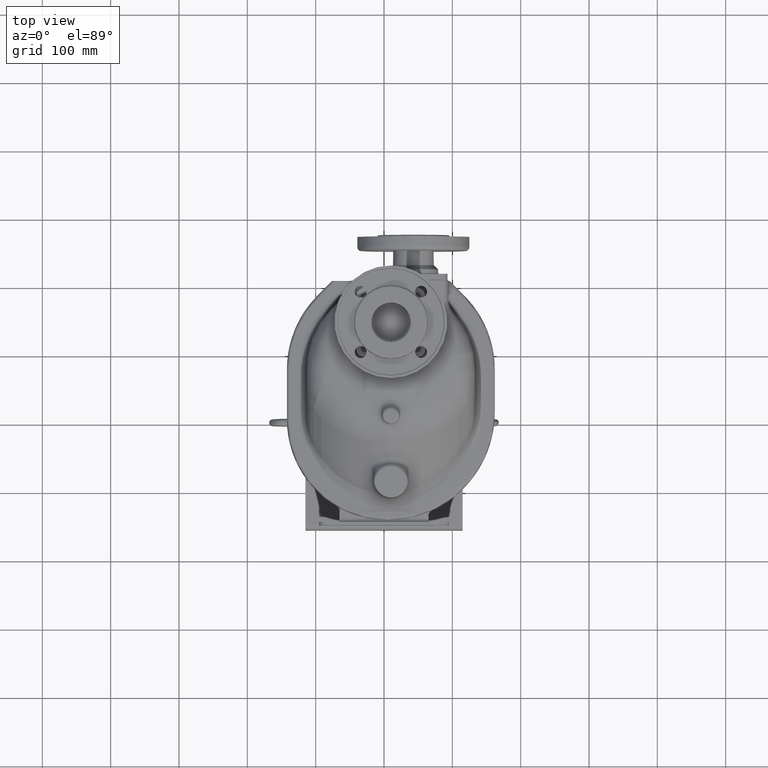
[diagram: clean part render]
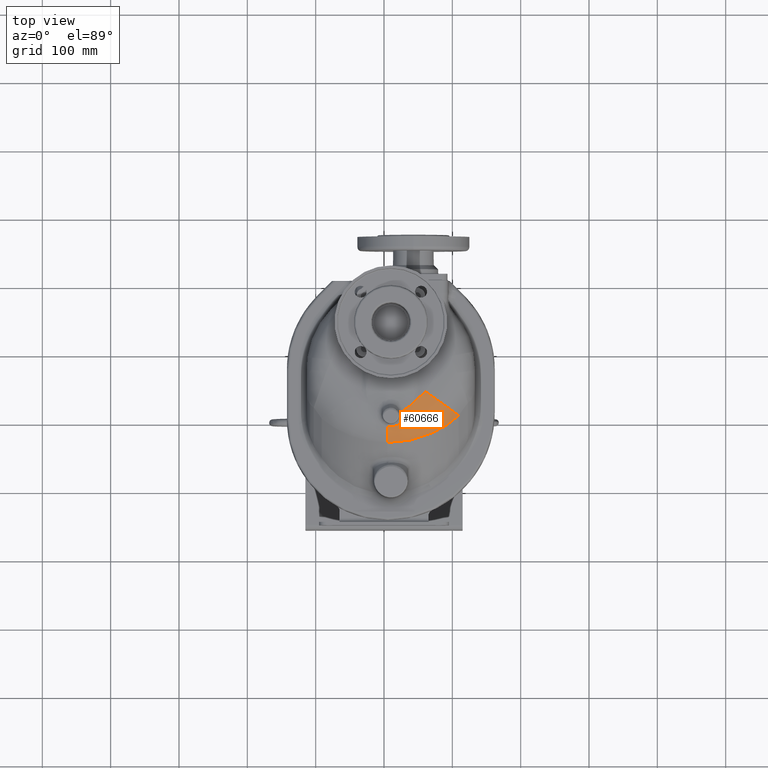
[diagram: same view with one face highlighted and labeled with its STEP entity id]
A machine part, top view. The second image highlights one B-rep face of the part: STEP entity #60666.
In plain terms, the highlighted face is a freeform B-spline surface patch.
Its self-contained STEP definition (entity closure, byte-faithful):
#60=CARTESIAN_POINT('',(4.676081768650E1,2.222382711685E1,1.075E2));
#61=CARTESIAN_POINT('',(4.718872160353E1,2.251621480639E1,1.075E2));
#62=CARTESIAN_POINT('',(4.803051749132E1,2.310669344208E1,1.075E2));
#63=CARTESIAN_POINT('',(4.925350891889E1,2.401009807787E1,1.075E2));
#64=CARTESIAN_POINT('',(5.043188078383E1,2.492640877660E1,1.075E2));
#65=CARTESIAN_POINT('',(5.156137392831E1,2.585055068629E1,1.075E2));
#66=CARTESIAN_POINT('',(5.264702762473E1,2.678476813309E1,1.075E2));
#67=CARTESIAN_POINT('',(5.369760888815E1,2.773632695411E1,1.075E2));
#68=CARTESIAN_POINT('',(5.467695873003E1,2.867043454930E1,1.075E2));
#69=CARTESIAN_POINT('',(5.555601826424E1,2.955165517195E1,1.075E2));
#70=CARTESIAN_POINT('',(5.632116061988E1,3.035550874673E1,1.075E2));
#71=CARTESIAN_POINT('',(5.695939720542E1,3.105468536549E1,1.075E2));
#72=CARTESIAN_POINT('',(5.751539208760E1,3.168676412912E1,1.075E2));
#73=CARTESIAN_POINT('',(5.802767805102E1,3.228991594073E1,1.075E2));
#74=CARTESIAN_POINT('',(5.853750452684E1,3.291208041050E1,1.075E2));
#75=CARTESIAN_POINT('',(5.904616747054E1,3.355768672353E1,1.075E2));
#76=CARTESIAN_POINT('',(5.954307181586E1,3.421522084737E1,1.075E2));
#77=CARTESIAN_POINT('',(5.985923496879E1,3.465224788360E1,1.075E2));
#78=CARTESIAN_POINT('',(6.001408767569E1,3.487124348237E1,1.075E2));
#196=CARTESIAN_POINT('',(4.999999999127E0,-1.684008274446E1,1.022461326631E2));
#197=CARTESIAN_POINT('',(5.217806133387E0,-1.689064275731E1,1.022253573372E2));
#198=CARTESIAN_POINT('',(5.654623842226E0,-1.698466114887E1,1.021860229331E2));
#199=CARTESIAN_POINT('',(6.313142589266E0,-1.710465046673E1,1.021337004123E2));
#200=CARTESIAN_POINT('',(6.974324806092E0,-1.720368405394E1,1.020881141124E2));
#201=CARTESIAN_POINT('',(7.637667776721E0,-1.728181620109E1,1.020493303386E2));
#202=CARTESIAN_POINT('',(8.302668124163E0,-1.733902793422E1,1.020174312734E2));
#203=CARTESIAN_POINT('',(8.968844703202E0,-1.737523240034E1,1.019925164186E2));
#204=CARTESIAN_POINT('',(9.635718559695E0,-1.739028916810E1,1.019746957770E2));
#205=CARTESIAN_POINT('',(1.030269158425E1,-1.738434455537E1,1.019639485423E2));
#206=CARTESIAN_POINT('',(1.096917403252E1,-1.735748659128E1,1.019602670085E2));
#207=CARTESIAN_POINT('',(1.163457545950E1,-1.730976495340E1,1.019636485826E2));
#208=CARTESIAN_POINT('',(1.229826446594E1,-1.724119028971E1,1.019740973545E2));
#209=CARTESIAN_POINT('',(1.295960510091E1,-1.715173981800E1,1.019916210371E2));
#210=CARTESIAN_POINT('',(1.361795089933E1,-1.704134233863E1,1.020162378829E2));
#211=CARTESIAN_POINT('',(1.427279028095E1,-1.691016695069E1,1.020478493332E2));
#212=CARTESIAN_POINT('',(1.492360189021E1,-1.675834584027E1,1.020863613862E2));
#213=CARTESIAN_POINT('',(1.556984091920E1,-1.658596250384E1,1.021316897998E2));
#214=CARTESIAN_POINT('',(1.621060892900E1,-1.639316142368E1,1.021837296930E2));
#215=CARTESIAN_POINT('',(1.684500400432E1,-1.618009577852E1,1.022423657698E2));
#216=CARTESIAN_POINT('',(1.747210524370E1,-1.594688406048E1,1.023074908581E2));
#217=CARTESIAN_POINT('',(1.809159367313E1,-1.569367308104E1,1.023789481964E2));
#218=CARTESIAN_POINT('',(1.870312795310E1,-1.542059069187E1,1.024565772644E2));
#219=CARTESIAN_POINT('',(1.930632611547E1,-1.512770797952E1,1.025402293552E2));
#220=CARTESIAN_POINT('',(1.990015449437E1,-1.481538844006E1,1.026296661898E2));
#221=CARTESIAN_POINT('',(2.048359315487E1,-1.448403828569E1,1.027246299287E2));
#222=CARTESIAN_POINT('',(2.105561525292E1,-1.413407177188E1,1.028248582502E2));
#223=CARTESIAN_POINT('',(2.161570317209E1,-1.376579202147E1,1.029300974953E2));
#224=CARTESIAN_POINT('',(2.216334063172E1,-1.337951780075E1,1.030400809329E2));
#225=CARTESIAN_POINT('',(2.269798678434E1,-1.297555565417E1,1.031545410493E2));
#226=CARTESIAN_POINT('',(2.321872628232E1,-1.255450840234E1,1.032731221285E2));
#227=CARTESIAN_POINT('',(2.372467666536E1,-1.211701890492E1,1.033954552111E2));
#228=CARTESIAN_POINT('',(2.421498015517E1,-1.166375942165E1,1.035211632959E2));
#229=CARTESIAN_POINT('',(2.468902119296E1,-1.119534037689E1,1.036498786779E2));
#230=CARTESIAN_POINT('',(2.514620983695E1,-1.071239819543E1,1.037812261224E2));
#231=CARTESIAN_POINT('',(2.558597099480E1,-1.021558898327E1,1.039148266222E2));
#232=CARTESIAN_POINT('',(2.600767959326E1,-9.705681212245E0,1.040502734255E2));
#233=CARTESIAN_POINT('',(2.641074940011E1,-9.183457884883E0,1.041871610579E2));
#234=CARTESIAN_POINT('',(2.679464369505E1,-8.649736034743E0,1.043250792222E2));
#235=CARTESIAN_POINT('',(2.715888610948E1,-8.105403563837E0,1.044636030378E2));
#236=CARTESIAN_POINT('',(2.750303910835E1,-7.551358340249E0,1.046023153409E2));
#237=CARTESIAN_POINT('',(2.782671564949E1,-6.988510096108E0,1.047408062747E2));
#238=CARTESIAN_POINT('',(2.812959521210E1,-6.417741709951E0,1.048786838520E2));
#239=CARTESIAN_POINT('',(2.841139266875E1,-5.839934589647E0,1.050155688553E2));
#240=CARTESIAN_POINT('',(2.867188568181E1,-5.255993820066E0,1.051510868259E2));
#241=CARTESIAN_POINT('',(2.891088031032E1,-4.666953738464E0,1.052848461012E2));
#242=CARTESIAN_POINT('',(2.912822442297E1,-4.073840384236E0,1.054164759599E2));
#243=CARTESIAN_POINT('',(2.932383903230E1,-3.477650827967E0,1.055456303694E2));
#244=CARTESIAN_POINT('',(2.949779105542E1,-2.879029057274E0,1.056720555091E2));
#245=CARTESIAN_POINT('',(2.965014478835E1,-2.278611403715E0,1.057955102769E2));
#246=CARTESIAN_POINT('',(2.978097821243E1,-1.677011485221E0,1.059157686604E2));
#247=CARTESIAN_POINT('',(2.989044599842E1,-1.075097755017E0,1.060325606832E2));
#248=CARTESIAN_POINT('',(2.997870719964E1,-4.736960577983E-1,1.061456455789E2));
#249=CARTESIAN_POINT('',(3.004592771281E1,1.263655307565E-1,1.062548018711E2));
#250=CARTESIAN_POINT('',(3.009228476474E1,7.243743118786E-1,1.063598475924E2));
#251=CARTESIAN_POINT('',(3.010939367472E1,1.120984515938E0,1.064269912204E2));
#252=CARTESIAN_POINT('',(3.011453762967E1,1.318819141625E0,1.064598456783E2));
#254=CARTESIAN_POINT('',(3.011453762967E1,1.318819141625E0,1.064598456783E2));
#255=CARTESIAN_POINT('',(3.012165330295E1,1.593182485528E0,1.065054093245E2));
#256=CARTESIAN_POINT('',(3.013604605897E1,2.143061624647E0,1.065936175389E2));
#257=CARTESIAN_POINT('',(3.015813000069E1,2.971154936074E0,1.067171081647E2));
#258=CARTESIAN_POINT('',(3.017319476238E1,3.525446374863E0,1.067935369279E2));
#259=CARTESIAN_POINT('',(3.018081460489E1,3.803118173751E0,1.068302662761E2));
#261=CARTESIAN_POINT('',(3.018081460489E1,3.803118173751E0,1.068302662761E2));
#262=CARTESIAN_POINT('',(3.018661026272E1,4.014230551518E0,1.068581911758E2));
#263=CARTESIAN_POINT('',(3.019112139797E1,4.438186648313E0,1.069127647394E2));
#264=CARTESIAN_POINT('',(3.017646333894E1,5.079563553070E0,1.069905764041E2));
#265=CARTESIAN_POINT('',(3.014015119045E1,5.725524722602E0,1.070639856982E2));
#266=CARTESIAN_POINT('',(3.008196565190E1,6.375546763283E0,1.071326907443E2));
#267=CARTESIAN_POINT('',(3.000171621095E1,7.029032268216E0,1.071963909949E2));
#268=CARTESIAN_POINT('',(2.989927629363E1,7.685454197039E0,1.072547912854E2));
#269=CARTESIAN_POINT('',(2.981598155898E1,8.124391552737E0,1.072900059958E2));
#270=CARTESIAN_POINT('',(2.977060783238E1,8.344239126032E0,1.073066405604E2));
#272=CARTESIAN_POINT('',(2.977060783238E1,8.344239126032E0,1.073066405604E2));
#273=CARTESIAN_POINT('',(3.013504897951E1,8.516758845817E0,1.073107493449E2));
#274=CARTESIAN_POINT('',(3.086557434385E1,8.874048655826E0,1.073192257094E2));
#275=CARTESIAN_POINT('',(3.196392721398E1,9.447118736466E0,1.073326212908E2));
#276=CARTESIAN_POINT('',(3.306472303725E1,1.005828876446E1,1.073465585579E2));
#277=CARTESIAN_POINT('',(3.416745592478E1,1.070800143636E1,1.073608754376E2));
#278=CARTESIAN_POINT('',(3.527132087092E1,1.139719198739E1,1.073754323676E2));
#279=CARTESIAN_POINT('',(3.637697152947E1,1.212723106173E1,1.073900648466E2));
#280=CARTESIAN_POINT('',(3.748517634031E1,1.289991799728E1,1.074046077844E2));
#281=CARTESIAN_POINT('',(3.859625188702E1,1.371668562915E1,1.074188683083E2));
#282=CARTESIAN_POINT('',(3.971039542923E1,1.457951286270E1,1.074326630171E2));
#283=CARTESIAN_POINT('',(4.045477886764E1,1.518601695488E1,1.074413939667E2));
#284=CARTESIAN_POINT('',(4.082702514278E1,1.549679329104E1,1.074455962500E2));
#286=CARTESIAN_POINT('',(4.082702514278E1,1.549679329104E1,1.074455962500E2));
#287=CARTESIAN_POINT('',(4.100021008106E1,1.564145459838E1,1.074475592240E2));
#288=CARTESIAN_POINT('',(4.135293713051E1,1.594460081307E1,1.074516523496E2));
#289=CARTESIAN_POINT('',(4.189701139116E1,1.644144600259E1,1.074582645854E2));
#290=CARTESIAN_POINT('',(4.245758413469E1,1.698314950999E1,1.074651625557E2));
#291=CARTESIAN_POINT('',(4.303325346327E1,1.757160058423E1,1.074721666143E2));
#292=CARTESIAN_POINT('',(4.362288450438E1,1.820850980122E1,1.074790406008E2));
#293=CARTESIAN_POINT('',(4.422509441506E1,1.889593769389E1,1.074855179097E2));
#294=CARTESIAN_POINT('',(4.484032301775E1,1.963677081406E1,1.074912795292E2));
#295=CARTESIAN_POINT('',(4.546810447540E1,2.043455358866E1,1.074959711637E2));
#296=CARTESIAN_POINT('',(4.610790684925E1,2.129197800033E1,1.074991722117E2));
#297=CARTESIAN_POINT('',(4.654241958610E1,2.190641876092E1,1.075000005020E2));
#298=CARTESIAN_POINT('',(4.676081768650E1,2.222382711685E1,1.075E2));
#300=CARTESIAN_POINT('',(4.999999999859E0,9.767027304759E0,3.75E1));
#301=DIRECTION('',(1.E0,-1.796109996835E-12,0.E0));
#302=DIRECTION('',(-6.827046864341E-13,-3.801015721341E-1,9.249447523291E-1));
#303=AXIS2_PLACEMENT_3D('',#300,#301,#302);
#411=CARTESIAN_POINT('',(4.999999999127E0,-1.684008274446E1,1.022461326631E2));
#3468=CARTESIAN_POINT('',(5.E0,-3.973044737830E1,8.699747468306E1));
#3469=CARTESIAN_POINT('',(6.034536997938E0,-3.973044697408E1,8.699747469583E1));
#3470=CARTESIAN_POINT('',(8.104642207348E0,-3.971020905824E1,8.699262854527E1));
#3471=CARTESIAN_POINT('',(1.121122971413E1,-3.961899000533E1,8.697075087034E1));
#3472=CARTESIAN_POINT('',(1.431690827398E1,-3.946686811769E1,8.693417030181E1));
#3473=CARTESIAN_POINT('',(1.741953993564E1,-3.925388291458E1,8.688278832285E1));
#3474=CARTESIAN_POINT('',(2.051707996895E1,-3.898016201200E1,8.681647800851E1));
#3475=CARTESIAN_POINT('',(2.360749325080E1,-3.864594801399E1,8.673506029614E1));
#3476=CARTESIAN_POINT('',(2.668873802066E1,-3.825155192240E1,8.663835029919E1));
#3477=CARTESIAN_POINT('',(2.975866897294E1,-3.779741843352E1,8.652611822071E1));
#3478=CARTESIAN_POINT('',(3.281576466400E1,-3.728396363557E1,8.639810146397E1));
#3479=CARTESIAN_POINT('',(3.585869311218E1,-3.671161974538E1,8.625398395780E1));
#3480=CARTESIAN_POINT('',(3.888619113303E1,-3.608085930181E1,8.609338008173E1));
#3481=CARTESIAN_POINT('',(4.189648301819E1,-3.539227911530E1,8.591591515637E1));
#3482=CARTESIAN_POINT('',(4.488745218995E1,-3.464667889660E1,8.572116520836E1));
#3483=CARTESIAN_POINT('',(4.785707835807E1,-3.384490022087E1,8.550870674300E1));
#3484=CARTESIAN_POINT('',(5.080331856760E1,-3.298792763258E1,8.527804727938E1));
#3485=CARTESIAN_POINT('',(5.372413694279E1,-3.207681660695E1,8.502869333773E1));
#3486=CARTESIAN_POINT('',(5.661751473908E1,-3.111274677118E1,8.476008875699E1));
#3487=CARTESIAN_POINT('',(5.948100341886E1,-3.009714096368E1,8.447171160382E1));
#3488=CARTESIAN_POINT('',(6.231228534014E1,-2.903153489224E1,8.416299183671E1));
#3489=CARTESIAN_POINT('',(6.510875905877E1,-2.791770935325E1,8.383338433823E1));
#3490=CARTESIAN_POINT('',(6.786785067322E1,-2.675760543909E1,8.348233255773E1));
#3491=CARTESIAN_POINT('',(7.058673112656E1,-2.555345113422E1,8.310931543531E1));
#3492=CARTESIAN_POINT('',(7.326253857441E1,-2.430768648614E1,8.271383898104E1));
#3493=CARTESIAN_POINT('',(7.589222447914E1,-2.302305300995E1,8.229547096438E1));
#3494=CARTESIAN_POINT('',(7.847275758879E1,-2.170251547091E1,8.185383044742E1));
#3495=CARTESIAN_POINT('',(8.100104618230E1,-2.034930795805E1,8.138861933260E1));
#3496=CARTESIAN_POINT('',(8.347404657274E1,-1.896688940009E1,8.089962322698E1));
#3497=CARTESIAN_POINT('',(8.588874384936E1,-1.755894913735E1,8.038674466963E1));
#3498=CARTESIAN_POINT('',(8.824222347652E1,-1.612937604311E1,7.985000305098E1));
#3499=CARTESIAN_POINT('',(9.053166131765E1,-1.468226763840E1,7.928955832984E1));
#3500=CARTESIAN_POINT('',(9.275463036059E1,-1.322169592493E1,7.870567951736E1));
#3501=CARTESIAN_POINT('',(9.490887530533E1,-1.175184467292E1,7.809879031884E1));
#3502=CARTESIAN_POINT('',(9.699244807655E1,-1.027695406452E1,7.746939042751E1));
#3503=CARTESIAN_POINT('',(9.900338254652E1,-8.801316502194E0,7.681840041034E1));
#3504=CARTESIAN_POINT('',(1.009407496669E2,-7.328805567493E0,7.614650618843E1));
#3505=CARTESIAN_POINT('',(1.028045519849E2,-5.862577646732E0,7.545434474524E1));
#3506=CARTESIAN_POINT('',(1.045947215127E2,-4.406037376131E0,7.474257990403E1));
#3507=CARTESIAN_POINT('',(1.063113094864E2,-2.962182554692E0,7.401237938289E1));
#3508=CARTESIAN_POINT('',(1.079543053936E2,-1.533705385553E0,7.326553613114E1));
#3509=CARTESIAN_POINT('',(1.090003938537E2,-5.946815742922E-1,
7.275697677224E1));
#3510=CARTESIAN_POINT('',(1.095115623588E2,-1.287565176259E-1,7.25E1));
#3681=CARTESIAN_POINT('',(6.001408767570E1,3.487124348238E1,3.75E1));
#3682=DIRECTION('',(5.773502691896E-1,8.164965809277E-1,0.E0));
#3683=DIRECTION('',(0.E0,0.E0,1.E0));
#3684=AXIS2_PLACEMENT_3D('',#3681,#3682,#3683);
#52140=CARTESIAN_POINT('',(1.095115623588E2,-1.287565176259E-1,7.25E1));
#52142=VERTEX_POINT('',#52140);
#52152=VERTEX_POINT('',#286);
#52153=VERTEX_POINT('',#298);
#52168=VERTEX_POINT('',#411);
#52170=VERTEX_POINT('',#252);
#52172=VERTEX_POINT('',#259);
#52174=VERTEX_POINT('',#270);
#52178=VERTEX_POINT('',#3468);
#52274=CARTESIAN_POINT('',(6.001408767570E1,3.487124348238E1,1.075E2));
#52275=VERTEX_POINT('',#52274);
#60547=CARTESIAN_POINT('',(4.999999999776E0,9.767027304759E0,1.075E2));
#60548=CARTESIAN_POINT('',(6.800874441365E0,9.767030136E0,1.075E2));
#60549=CARTESIAN_POINT('',(1.025467826161E1,9.885951896407E0,1.075E2));
#60550=CARTESIAN_POINT('',(1.521730598301E1,1.038644198193E1,1.075E2));
#60551=CARTESIAN_POINT('',(1.976567717915E1,1.112899524808E1,1.075E2));
#60552=CARTESIAN_POINT('',(2.393845745878E1,1.205909819184E1,1.075E2));
#60553=CARTESIAN_POINT('',(2.774892784218E1,1.312698052638E1,1.075E2));
#60554=CARTESIAN_POINT('',(3.120662522025E1,1.428753150063E1,1.075E2));
#60555=CARTESIAN_POINT('',(3.431264488592E1,1.549627717190E1,1.075E2));
#60556=CARTESIAN_POINT('',(3.706386000856E1,1.670814791753E1,1.075E2));
#60557=CARTESIAN_POINT('',(3.947244557727E1,1.788607929135E1,1.075E2));
#60558=CARTESIAN_POINT('',(4.158207544498E1,1.901401679737E1,1.075E2));
#60559=CARTESIAN_POINT('',(4.346474642146E1,2.010205524205E1,1.075E2));
#60560=CARTESIAN_POINT('',(4.520046157135E1,2.117858095010E1,1.075E2));
#60561=CARTESIAN_POINT('',(4.685108776080E1,2.227340938091E1,1.075E2));
#60562=CARTESIAN_POINT('',(4.844671058630E1,2.340402010771E1,1.075E2));
#60563=CARTESIAN_POINT('',(4.999049280648E1,2.457244279998E1,1.075E2));
#60564=CARTESIAN_POINT('',(5.147714108728E1,2.577435829502E1,1.075E2));
#60565=CARTESIAN_POINT('',(5.291470050915E1,2.701633822740E1,1.075E2));
#60566=CARTESIAN_POINT('',(5.433156094955E1,2.832685197998E1,1.075E2));
#60567=CARTESIAN_POINT('',(5.576105674925E1,2.974944839400E1,1.075E2));
#60568=CARTESIAN_POINT('',(5.721782372963E1,3.132330862489E1,1.075E2));
#60569=CARTESIAN_POINT('',(5.868527219064E1,3.306689480975E1,1.075E2));
#60570=CARTESIAN_POINT('',(5.958180969829E1,3.425990786939E1,1.075E2));
#60571=CARTESIAN_POINT('',(6.001408767570E1,3.487124348238E1,1.075E2));
#60572=CARTESIAN_POINT('',(4.999999999702E0,-1.585475096016E1,1.075E2));
#60573=CARTESIAN_POINT('',(7.388646728052E0,-1.585474844421E1,1.075E2));
#60574=CARTESIAN_POINT('',(1.196970755614E1,-1.569705596912E1,1.075E2));
#60575=CARTESIAN_POINT('',(1.855905610478E1,-1.503266940005E1,1.075E2));
#60576=CARTESIAN_POINT('',(2.461003063419E1,-1.404501988249E1,1.075E2));
#60577=CARTESIAN_POINT('',(3.017631708437E1,-1.280455560368E1,1.075E2));
#60578=CARTESIAN_POINT('',(3.527650937624E1,-1.137549499613E1,1.075E2));
#60579=CARTESIAN_POINT('',(3.992308729376E1,-9.816176773292E0,1.075E2));
#60580=CARTESIAN_POINT('',(4.411615063059E1,-8.184660077330E0,1.075E2));
#60581=CARTESIAN_POINT('',(4.784892885457E1,-6.540668387283E0,1.075E2));
#60582=CARTESIAN_POINT('',(5.113432658533E1,-4.934137925390E0,1.075E2));
#60583=CARTESIAN_POINT('',(5.402790336464E1,-3.387233223361E0,1.075E2));
#60584=CARTESIAN_POINT('',(5.662498058313E1,-1.886483098872E0,1.075E2));
#60585=CARTESIAN_POINT('',(5.903380957770E1,-3.926370441636E-1,1.075E2));
#60586=CARTESIAN_POINT('',(6.133968041765E1,1.136626948842E0,1.075E2));
#60587=CARTESIAN_POINT('',(6.358530333702E1,2.727601168271E0,1.075E2));
#60588=CARTESIAN_POINT('',(6.577644168615E1,4.385732903490E0,1.075E2));
#60589=CARTESIAN_POINT('',(6.790704482988E1,6.107974332075E0,1.075E2));
#60590=CARTESIAN_POINT('',(6.999042810076E1,7.907554402195E0,1.075E2));
#60591=CARTESIAN_POINT('',(7.207102276706E1,9.831502570692E0,1.075E2));
#60592=CARTESIAN_POINT('',(7.420468363012E1,1.195412227068E1,1.075E2));
#60593=CARTESIAN_POINT('',(7.642617768616E1,1.435288261700E1,1.075E2));
#60594=CARTESIAN_POINT('',(7.873153486137E1,1.708961182639E1,1.075E2));
#60595=CARTESIAN_POINT('',(8.020310565600E1,1.904460251704E1,1.075E2));
#60596=CARTESIAN_POINT('',(8.093418202629E1,2.007850290402E1,1.075E2));
#60597=CARTESIAN_POINT('',(4.999999999639E0,-3.804386182770E1,
9.468911086754E1));
#60598=CARTESIAN_POINT('',(7.897672459963E0,-3.804385958482E1,
9.468911086754E1));
#60599=CARTESIAN_POINT('',(1.345496649343E1,-3.785259068589E1,
9.468911086754E1));
#60600=CARTESIAN_POINT('',(2.145309660333E1,-3.704626559847E1,
9.468911086754E1));
#60601=CARTESIAN_POINT('',(2.880536379117E1,-3.584635650081E1,
9.468911086754E1));
#60602=CARTESIAN_POINT('',(3.557846198537E1,-3.433711142150E1,
9.468911086754E1));
#60603=CARTESIAN_POINT('',(4.179558621380E1,-3.259526125424E1,
9.468911086754E1));
#60604=CARTESIAN_POINT('',(4.747176488054E1,-3.069060046392E1,
9.468911086754E1));
#60605=CARTESIAN_POINT('',(5.260623565162E1,-2.869295332059E1,
9.468911086754E1));
#60606=CARTESIAN_POINT('',(5.718907245679E1,-2.667473391517E1,
9.468911086754E1));
#60607=CARTESIAN_POINT('',(6.123381179423E1,-2.469702575497E1,
9.468911086754E1));
#60608=CARTESIAN_POINT('',(6.480630651420E1,-2.278728481784E1,
9.468911086754E1));
#60609=CARTESIAN_POINT('',(6.802207768689E1,-2.092911589420E1,
9.468911086754E1));
#60610=CARTESIAN_POINT('',(7.101384037059E1,-1.907385981777E1,
9.468911086754E1));
#60611=CARTESIAN_POINT('',(7.388716972356E1,-1.716836359159E1,
9.468911086754E1));
#60612=CARTESIAN_POINT('',(7.669570923670E1,-1.517870289257E1,
9.468911086754E1));
#60613=CARTESIAN_POINT('',(7.944747443878E1,-1.309647068570E1,
9.468911086754E1));
#60614=CARTESIAN_POINT('',(8.213575885270E1,-1.092361378041E1,
9.468911086754E1));
#60615=CARTESIAN_POINT('',(8.477844198319E1,-8.641137825859E0,
9.468911086754E1));
#60616=CARTESIAN_POINT('',(8.743384735047E1,-6.185939869619E0,
9.468911086754E1));
#60617=CARTESIAN_POINT('',(9.017733304689E1,-3.457082220740E0,
9.468911086754E1));
#60618=CARTESIAN_POINT('',(9.306110017740E1,-3.439374188762E-1,
9.468911086754E1));
#60619=CARTESIAN_POINT('',(9.609210758516E1,3.252878879347E0,9.468911086754E1));
#60620=CARTESIAN_POINT('',(9.806167181433E1,5.867761555566E0,9.468911086754E1));
#60621=CARTESIAN_POINT('',(9.905151518347E1,7.267613771568E0,9.468911086754E1));
#60622=CARTESIAN_POINT('',(4.999999999602E0,-5.085475096016E1,
7.249999999999E1));
#60623=CARTESIAN_POINT('',(8.191558603307E0,-5.085474887492E1,
7.249999999999E1));
#60624=CARTESIAN_POINT('',(1.431248114069E1,-5.064409461865E1,
7.249999999999E1));
#60625=CARTESIAN_POINT('',(2.312397166421E1,-4.975582128945E1,
7.249999999999E1));
#60626=CARTESIAN_POINT('',(3.122754051869E1,-4.843336406610E1,
7.249999999999E1));
#60627=CARTESIAN_POINT('',(3.869739179817E1,-4.676893831926E1,
7.249999999999E1));
#60628=CARTESIAN_POINT('',(4.555937698083E1,-4.484649901549E1,
7.249999999999E1));
#60629=CARTESIAN_POINT('',(5.182999591730E1,-4.274245460087E1,
7.249999999999E1));
#60630=CARTESIAN_POINT('',(5.750798852396E1,-4.053342194520E1,
7.249999999999E1));
#60631=CARTESIAN_POINT('',(6.258160687979E1,-3.829914206757E1,
7.249999999999E1));
#60632=CARTESIAN_POINT('',(6.706475229826E1,-3.610713436334E1,
7.249999999999E1));
#60633=CARTESIAN_POINT('',(7.102922047403E1,-3.398790982820E1,
7.249999999999E1));
#60634=CARTESIAN_POINT('',(7.460219476773E1,-3.192338506466E1,
7.249999999999E1));
#60635=CARTESIAN_POINT('',(7.793051437377E1,-2.985946881490E1,
7.249999999999E1));
#60636=CARTESIAN_POINT('',(8.113146605197E1,-2.773675480762E1,
7.249999999999E1));
#60637=CARTESIAN_POINT('',(8.426500561206E1,-2.551691236229E1,
7.249999999999E1));
#60638=CARTESIAN_POINT('',(8.734044887861E1,-2.318982563394E1,
7.249999999999E1));
#60639=CARTESIAN_POINT('',(9.035071072399E1,-2.075680576188E1,
7.249999999999E1));
#60640=CARTESIAN_POINT('',(9.331630577900E1,-1.819552973846E1,
7.249999999999E1));
#60641=CARTESIAN_POINT('',(9.630357825922E1,-1.543361457426E1,
7.249999999999E1));
#60642=CARTESIAN_POINT('',(9.939914648732E1,-1.235474528240E1,
7.249999999999E1));
#60643=CARTESIAN_POINT('',(1.026652771557E2,-8.829150422819E0,
7.249999999999E1));
#60644=CARTESIAN_POINT('',(1.061152389205E2,-4.735762612331E0,
7.249999999999E1));
#60645=CARTESIAN_POINT('',(1.083723197932E2,-1.739891120609E0,
7.249999999999E1));
#60646=CARTESIAN_POINT('',(1.095115623588E2,-1.287565176103E-1,
7.249999999999E1));
#60647=(BOUNDED_SURFACE()B_SPLINE_SURFACE(3,3,((#60547,#60548,#60549,#60550,
#60551,#60552,#60553,#60554,#60555,#60556,#60557,#60558,#60559,#60560,#60561,
#60562,#60563,#60564,#60565,#60566,#60567,#60568,#60569,#60570,#60571),(#60572,
#60573,#60574,#60575,#60576,#60577,#60578,#60579,#60580,#60581,#60582,#60583,
#60584,#60585,#60586,#60587,#60588,#60589,#60590,#60591,#60592,#60593,#60594,
#60595,#60596),(#60597,#60598,#60599,#60600,#60601,#60602,#60603,#60604,#60605,
#60606,#60607,#60608,#60609,#60610,#60611,#60612,#60613,#60614,#60615,#60616,
#60617,#60618,#60619,#60620,#60621),(#60622,#60623,#60624,#60625,#60626,#60627,
#60628,#60629,#60630,#60631,#60632,#60633,#60634,#60635,#60636,#60637,#60638,
#60639,#60640,#60641,#60642,#60643,#60644,#60645,#60646)),.UNSPECIFIED.,.F.,.F.,
.F.)B_SPLINE_SURFACE_WITH_KNOTS((4,4),(4,1,1,1,1,1,1,1,1,1,1,1,1,1,1,1,1,1,1,1,
1,1,4),(0.E0,1.E0),(-3.316957339417E-12,7.983144692974E-2,1.530705600638E-1,
2.213446421108E-1,2.849708310089E-1,3.441829861766E-1,3.991896308095E-1,
4.499191127646E-1,4.960022846374E-1,5.372203022571E-1,5.740680306717E-1,
6.077478235866E-1,6.397194090333E-1,6.712716798523E-1,7.030066411463E-1,
7.348901824353E-1,7.667823602242E-1,7.987994494975E-1,8.318177511200E-1,
8.673797347194E-1,9.067446671056E-1,9.506896082764E-1,1.E0),.UNSPECIFIED.)GEOMETRIC_REPRESENTATION_ITEM()RATIONAL_B_SPLINE_SURFACE(((1.071796769725E0,
1.071796769725E0,1.071796769725E0,1.071796769725E0,1.071796769725E0,
1.071796769725E0,1.071796769725E0,1.071796769725E0,1.071796769725E0,
1.071796769725E0,1.071796769725E0,1.071796769725E0,1.071796769725E0,
1.071796769725E0,1.071796769725E0,1.071796769725E0,1.071796769725E0,
1.071796769725E0,1.071796769725E0,1.071796769725E0,1.071796769725E0,
1.071796769725E0,1.071796769725E0,1.071796769725E0,1.071796769725E0),(
9.760677434252E-1,9.760677434252E-1,9.760677434252E-1,9.760677434252E-1,
9.760677434252E-1,9.760677434252E-1,9.760677434252E-1,9.760677434252E-1,
9.760677434252E-1,9.760677434252E-1,9.760677434252E-1,9.760677434252E-1,
9.760677434252E-1,9.760677434252E-1,9.760677434252E-1,9.760677434252E-1,
9.760677434252E-1,9.760677434252E-1,9.760677434252E-1,9.760677434252E-1,
9.760677434252E-1,9.760677434252E-1,9.760677434252E-1,9.760677434252E-1,
9.760677434252E-1),(9.760677434252E-1,9.760677434252E-1,9.760677434252E-1,
9.760677434252E-1,9.760677434252E-1,9.760677434252E-1,9.760677434252E-1,
9.760677434252E-1,9.760677434252E-1,9.760677434252E-1,9.760677434252E-1,
9.760677434252E-1,9.760677434252E-1,9.760677434252E-1,9.760677434252E-1,
9.760677434252E-1,9.760677434252E-1,9.760677434252E-1,9.760677434252E-1,
9.760677434252E-1,9.760677434252E-1,9.760677434252E-1,9.760677434252E-1,
9.760677434252E-1,9.760677434252E-1),(1.071796769725E0,1.071796769725E0,
1.071796769725E0,1.071796769725E0,1.071796769725E0,1.071796769725E0,
1.071796769725E0,1.071796769725E0,1.071796769725E0,1.071796769725E0,
1.071796769725E0,1.071796769725E0,1.071796769725E0,1.071796769725E0,
1.071796769725E0,1.071796769725E0,1.071796769725E0,1.071796769725E0,
1.071796769725E0,1.071796769725E0,1.071796769725E0,1.071796769725E0,
1.071796769725E0,1.071796769725E0,1.071796769725E0)))REPRESENTATION_ITEM('')SURFACE());
#60649=ORIENTED_EDGE('',*,*,#60648,.T.);
#60651=ORIENTED_EDGE('',*,*,#60650,.T.);
#60653=ORIENTED_EDGE('',*,*,#60652,.T.);
#60655=ORIENTED_EDGE('',*,*,#60654,.T.);
#60656=ORIENTED_EDGE('',*,*,#60530,.T.);
#60657=ORIENTED_EDGE('',*,*,#60198,.T.);
#60659=ORIENTED_EDGE('',*,*,#60658,.T.);
#60661=ORIENTED_EDGE('',*,*,#60660,.F.);
#60663=ORIENTED_EDGE('',*,*,#60662,.F.);
#60664=EDGE_LOOP('',(#60649,#60651,#60653,#60655,#60656,#60657,#60659,#60661,
#60663));
#60665=FACE_OUTER_BOUND('',#60664,.F.);
#79=B_SPLINE_CURVE_WITH_KNOTS('',3,(#60,#61,#62,#63,#64,#65,#66,#67,#68,#69,#70,
#71,#72,#73,#74,#75,#76,#77,#78),.UNSPECIFIED.,.F.,.F.,(4,1,1,1,1,1,1,1,1,1,1,1,
1,1,1,1,4),(0.E0,6.25E-2,1.25E-1,1.875E-1,2.5E-1,3.125E-1,3.75E-1,4.375E-1,
5.E-1,5.625E-1,6.25E-1,6.875E-1,7.5E-1,8.125E-1,8.75E-1,9.375E-1,1.E0),
.UNSPECIFIED.);
#253=B_SPLINE_CURVE_WITH_KNOTS('',3,(#196,#197,#198,#199,#200,#201,#202,#203,
#204,#205,#206,#207,#208,#209,#210,#211,#212,#213,#214,#215,#216,#217,#218,#219,
#220,#221,#222,#223,#224,#225,#226,#227,#228,#229,#230,#231,#232,#233,#234,#235,
#236,#237,#238,#239,#240,#241,#242,#243,#244,#245,#246,#247,#248,#249,#250,#251,
#252),.UNSPECIFIED.,.F.,.F.,(4,1,1,1,1,1,1,1,1,1,1,1,1,1,1,1,1,1,1,1,1,1,1,1,1,
1,1,1,1,1,1,1,1,1,1,1,1,1,1,1,1,1,1,1,1,1,1,1,1,1,1,1,1,1,4),(0.E0,
1.851851851852E-2,3.703703703704E-2,5.555555555556E-2,7.407407407407E-2,
9.259259259259E-2,1.111111111111E-1,1.296296296296E-1,1.481481481481E-1,
1.666666666667E-1,1.851851851852E-1,2.037037037037E-1,2.222222222222E-1,
2.407407407407E-1,2.592592592593E-1,2.777777777778E-1,2.962962962963E-1,
3.148148148148E-1,3.333333333333E-1,3.518518518519E-1,3.703703703704E-1,
3.888888888889E-1,4.074074074074E-1,4.259259259259E-1,4.444444444444E-1,
4.629629629630E-1,4.814814814815E-1,5.E-1,5.185185185185E-1,5.370370370370E-1,
5.555555555556E-1,5.740740740741E-1,5.925925925926E-1,6.111111111111E-1,
6.296296296296E-1,6.481481481481E-1,6.666666666667E-1,6.851851851852E-1,
7.037037037037E-1,7.222222222222E-1,7.407407407407E-1,7.592592592593E-1,
7.777777777778E-1,7.962962962963E-1,8.148148148148E-1,8.333333333333E-1,
8.518518518519E-1,8.703703703704E-1,8.888888888889E-1,9.074074074074E-1,
9.259259259259E-1,9.444444444444E-1,9.629629629630E-1,9.814814814815E-1,1.E0),
.UNSPECIFIED.);
#260=B_SPLINE_CURVE_WITH_KNOTS('',3,(#254,#255,#256,#257,#258,#259),
.UNSPECIFIED.,.F.,.F.,(4,1,1,4),(0.E0,3.333333333333E-1,6.666666666667E-1,1.E0),
.UNSPECIFIED.);
#271=B_SPLINE_CURVE_WITH_KNOTS('',3,(#261,#262,#263,#264,#265,#266,#267,#268,
#269,#270),.UNSPECIFIED.,.F.,.F.,(4,1,1,1,1,1,1,4),(0.E0,1.428571428571E-1,
2.857142857143E-1,4.285714285714E-1,5.714285714286E-1,7.142857142857E-1,
8.571428571429E-1,1.E0),.UNSPECIFIED.);
#285=B_SPLINE_CURVE_WITH_KNOTS('',3,(#272,#273,#274,#275,#276,#277,#278,#279,
#280,#281,#282,#283,#284),.UNSPECIFIED.,.F.,.F.,(4,1,1,1,1,1,1,1,1,1,4),(0.E0,
1.E-1,2.E-1,3.E-1,4.E-1,5.E-1,6.E-1,7.E-1,8.E-1,9.E-1,1.E0),.UNSPECIFIED.);
#299=B_SPLINE_CURVE_WITH_KNOTS('',3,(#286,#287,#288,#289,#290,#291,#292,#293,
#294,#295,#296,#297,#298),.UNSPECIFIED.,.F.,.F.,(4,1,1,1,1,1,1,1,1,1,4),(0.E0,
1.E-1,2.E-1,3.E-1,4.E-1,5.E-1,6.E-1,7.E-1,8.E-1,9.E-1,1.E0),.UNSPECIFIED.);
#304=CIRCLE('',#303,7.E1);
#3511=B_SPLINE_CURVE_WITH_KNOTS('',3,(#3468,#3469,#3470,#3471,#3472,#3473,#3474,
#3475,#3476,#3477,#3478,#3479,#3480,#3481,#3482,#3483,#3484,#3485,#3486,#3487,
#3488,#3489,#3490,#3491,#3492,#3493,#3494,#3495,#3496,#3497,#3498,#3499,#3500,
#3501,#3502,#3503,#3504,#3505,#3506,#3507,#3508,#3509,#3510),.UNSPECIFIED.,.F.,
.F.,(4,1,1,1,1,1,1,1,1,1,1,1,1,1,1,1,1,1,1,1,1,1,1,1,1,1,1,1,1,1,1,1,1,1,1,1,1,
1,1,1,4),(0.E0,2.5E-2,5.E-2,7.5E-2,1.E-1,1.25E-1,1.5E-1,1.75E-1,2.E-1,2.25E-1,
2.5E-1,2.75E-1,3.E-1,3.25E-1,3.5E-1,3.75E-1,4.E-1,4.25E-1,4.5E-1,4.75E-1,5.E-1,
5.25E-1,5.5E-1,5.75E-1,6.E-1,6.25E-1,6.5E-1,6.75E-1,7.E-1,7.25E-1,7.5E-1,
7.75E-1,8.E-1,8.25E-1,8.5E-1,8.75E-1,9.E-1,9.25E-1,9.5E-1,9.75E-1,1.E0),
.UNSPECIFIED.);
#3685=CIRCLE('',#3684,7.E1);
#60198=EDGE_CURVE('',#52153,#52275,#79,.T.);
#60530=EDGE_CURVE('',#52152,#52153,#299,.T.);
#60648=EDGE_CURVE('',#52168,#52170,#253,.T.);
#60650=EDGE_CURVE('',#52170,#52172,#260,.T.);
#60652=EDGE_CURVE('',#52172,#52174,#271,.T.);
#60654=EDGE_CURVE('',#52174,#52152,#285,.T.);
#60658=EDGE_CURVE('',#52275,#52142,#3685,.T.);
#60660=EDGE_CURVE('',#52178,#52142,#3511,.T.);
#60662=EDGE_CURVE('',#52168,#52178,#304,.T.);
#60666=ADVANCED_FACE('',(#60665),#60647,.T.);